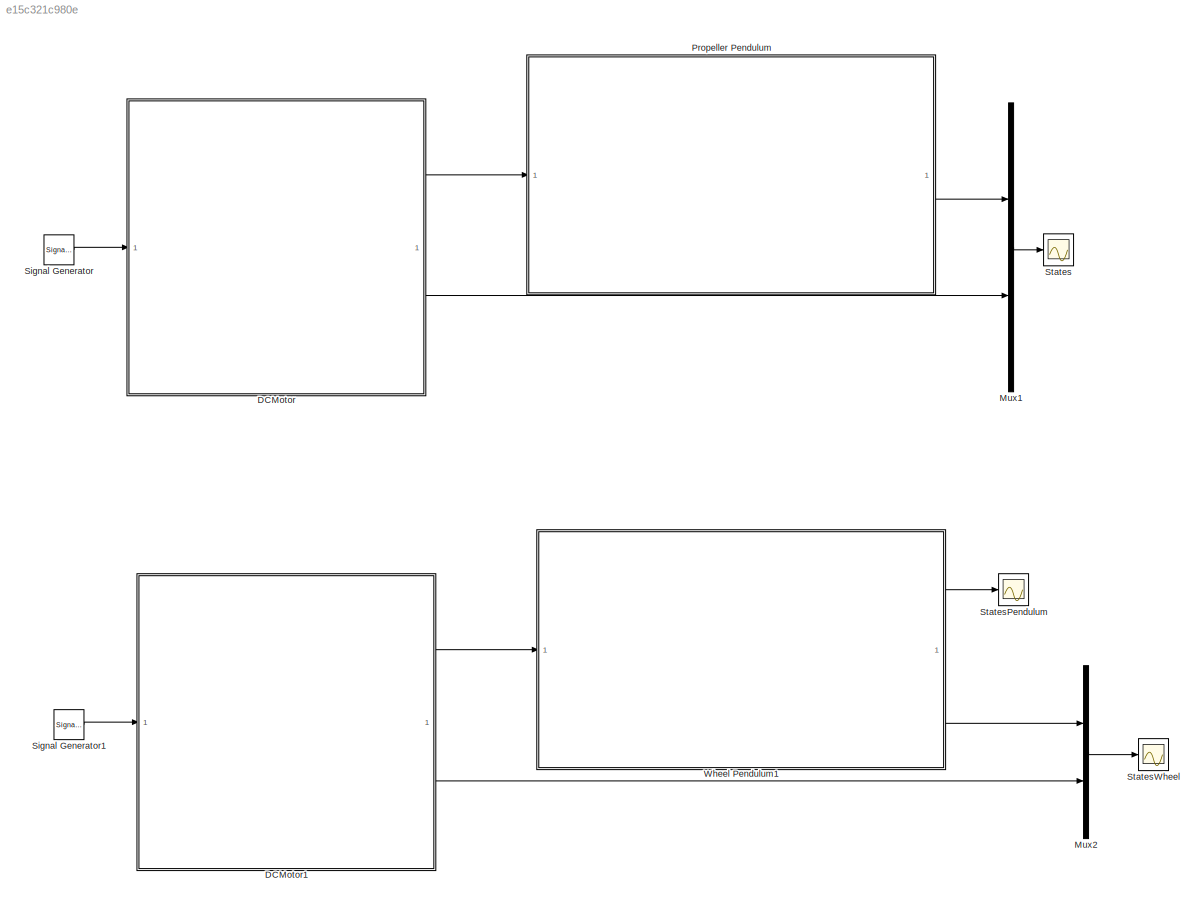
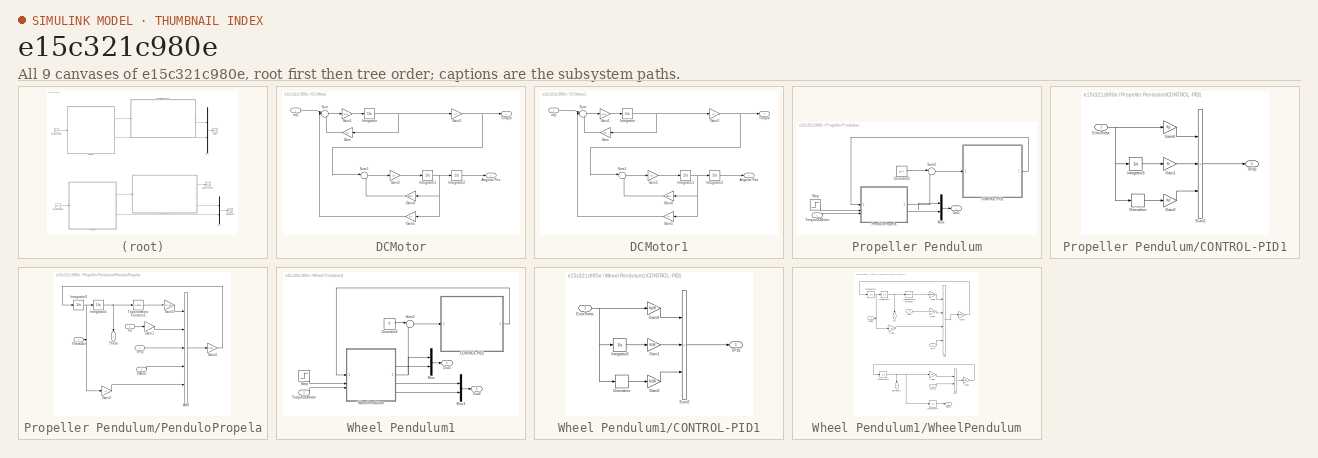
[diagram: thumbnail index - all 9 canvases of the model, root first then tree order]
MODEL mdl_e15c321c980e
KIND model
CONFIG AbsTol = auto
CONFIG EnableMultiTasking = off
CONFIG FixedStep = 0.001
CONFIG MaxStep = auto
CONFIG MinStep = auto
CONFIG RelTol = 1e-3
CONFIG SampleTimeConstraint = Unconstrained
CONFIG SolverName = FixedStepAuto
CONFIG StartTime = 0.0
CONFIG StopTime = 100
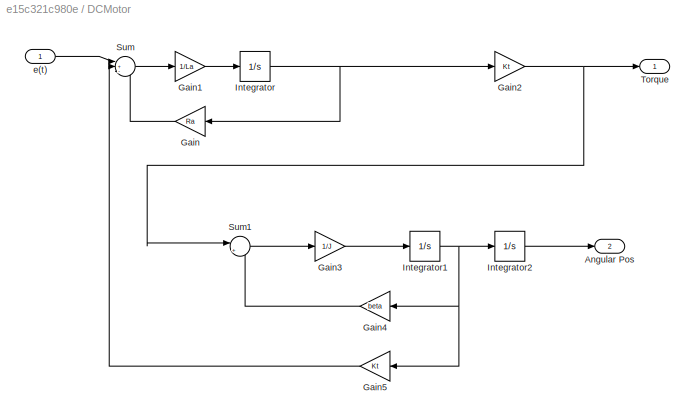
BLOCK [SubSystem] DCMotor
BLOCK [Outport] DCMotor/Angular Pos
  Port = 2
BLOCK [Gain] DCMotor/Gain
  Gain = Ra
  NameLocation = top
BLOCK [Gain] DCMotor/Gain1
  Gain = 1/La
BLOCK [Gain] DCMotor/Gain2
  Gain = Kt
BLOCK [Gain] DCMotor/Gain3
  Gain = 1/J
BLOCK [Gain] DCMotor/Gain4
  Gain = beta
  NameLocation = top
BLOCK [Gain] DCMotor/Gain5
  Gain = Kt
  NameLocation = top
BLOCK [Integrator] DCMotor/Integrator
BLOCK [Integrator] DCMotor/Integrator1
BLOCK [Integrator] DCMotor/Integrator2
BLOCK [Sum] DCMotor/Sum
  Inputs = |+--
BLOCK [Sum] DCMotor/Sum1
  Inputs = |+-
BLOCK [Outport] DCMotor/Torque
BLOCK [Inport] DCMotor/e(t)
BLOCK [SubSystem] DCMotor1
BLOCK [Outport] DCMotor1/Angular Pos
  Port = 2
BLOCK [Gain] DCMotor1/Gain
  Gain = Ra
  NameLocation = top
BLOCK [Gain] DCMotor1/Gain1
  Gain = 1/La
BLOCK [Gain] DCMotor1/Gain2
  Gain = Kt
BLOCK [Gain] DCMotor1/Gain3
  Gain = 1/J
BLOCK [Gain] DCMotor1/Gain4
  Gain = beta
  NameLocation = top
BLOCK [Gain] DCMotor1/Gain5
  Gain = Kt
  NameLocation = top
BLOCK [Integrator] DCMotor1/Integrator
BLOCK [Integrator] DCMotor1/Integrator1
BLOCK [Integrator] DCMotor1/Integrator2
BLOCK [Sum] DCMotor1/Sum
  Inputs = |+--
BLOCK [Sum] DCMotor1/Sum1
  Inputs = |+-
BLOCK [Outport] DCMotor1/Torque
BLOCK [Inport] DCMotor1/e(t)
BLOCK [Mux] Mux1
  DisplayOption = bar
  Inputs = 2
BLOCK [Mux] Mux2
  DisplayOption = bar
  Inputs = 2
BLOCK [SubSystem] Propeller Pendulum
BLOCK [SubSystem] Propeller Pendulum/CONTROL-PID1
BLOCK [Derivative] Propeller Pendulum/CONTROL-PID1/Derivative
  CoefficientInTFapproximation = 1/2.8915
BLOCK [Inport] Propeller Pendulum/CONTROL-PID1/ErrorTheta
BLOCK [Gain] Propeller Pendulum/CONTROL-PID1/Gain1
  Gain = Ki
BLOCK [Gain] Propeller Pendulum/CONTROL-PID1/Gain2
  Gain = Kd
BLOCK [Gain] Propeller Pendulum/CONTROL-PID1/Gain4
  Gain = Kp
BLOCK [Integrator] Propeller Pendulum/CONTROL-PID1/Integrator3
  InitialCondition = pi/2
BLOCK [Sum] Propeller Pendulum/CONTROL-PID1/Sum2
  IconShape = rectangular
  Inputs = +++
BLOCK [Outport] Propeller Pendulum/CONTROL-PID1/TPID
BLOCK [Constant] Propeller Pendulum/Constant3
  Value = pi/4
BLOCK [Mux] Propeller Pendulum/Mux
  DisplayOption = bar
  Inputs = 2
BLOCK [Outport] Propeller Pendulum/Out1
BLOCK [SubSystem] Propeller Pendulum/PenduloPropela
BLOCK [Sum] Propeller Pendulum/PenduloPropela/Add
  IconShape = rectangular
  Inputs = +++++
BLOCK [Inport] Propeller Pendulum/PenduloPropela/Fd
  Port = 2
BLOCK [Gain] Propeller Pendulum/PenduloPropela/Gain1
  Gain = -L
BLOCK [Gain] Propeller Pendulum/PenduloPropela/Gain2
  Gain = -b
BLOCK [Gain] Propeller Pendulum/PenduloPropela/Gain3
  Gain = ITinv
BLOCK [Gain] Propeller Pendulum/PenduloPropela/Gain5
  Gain = -MP*g*rc
BLOCK [Integrator] Propeller Pendulum/PenduloPropela/Integrator1
  InitialCondition = pi/2
BLOCK [Integrator] Propeller Pendulum/PenduloPropela/Integrator2
  InitialCondition = pi/2
BLOCK [Inport] Propeller Pendulum/PenduloPropela/TMotor
  Port = 3
BLOCK [Inport] Propeller Pendulum/PenduloPropela/TPID
BLOCK [Outport] Propeller Pendulum/PenduloPropela/Theta
  NameLocation = left
BLOCK [Outport] Propeller Pendulum/PenduloPropela/ThetaDot
  NameLocation = top
  Port = 2
BLOCK [Trigonometry] Propeller Pendulum/PenduloPropela/Trigonometric Function1
BLOCK [Step] Propeller Pendulum/Step
  After = Fd
  SampleTime = 0
BLOCK [Sum] Propeller Pendulum/Sum2
  Inputs = |+-
BLOCK [Inport] Propeller Pendulum/TorqueDCMotor
BLOCK [SignalGenerator] Signal Generator
  Units = rad/sec
BLOCK [SignalGenerator] Signal Generator1
  Units = rad/sec
BLOCK [Scope] States
  Floating = off
  NumInputPorts = 1
  ScopeSpecificationString = Simulink.scopes.TimeScopeBlockCfg('CurrentConfiguration', extmgr.ConfigurationSet(extmgr.Configuration('Core','General UI',true),extmgr.Configuration('Core','Source UI',true),extmgr.Configuration('Sources','WiredSimulink',true,'DataLoggingVariableName','ScopeData1'),extmgr.Configuration('Visuals','Time Domain',true,'SerializedDisplays',{struct('MinYLimReal','-2353.2694','MaxYLimReal','470.99658','...<+1530ch>
BLOCK [Scope] StatesPendulum
  Floating = off
  NumInputPorts = 1
  ScopeSpecificationString = Simulink.scopes.TimeScopeBlockCfg('CurrentConfiguration', extmgr.ConfigurationSet(extmgr.Configuration('Core','General UI',true),extmgr.Configuration('Core','Source UI',true),extmgr.Configuration('Sources','WiredSimulink',true,'DataLoggingVariableName','ScopeData2'),extmgr.Configuration('Visuals','Time Domain',true,'SerializedDisplays',{struct('MinYLimReal','-88.81158','MaxYLimReal','26.43078','YL...<+1506ch>
BLOCK [Scope] StatesWheel
  Floating = off
  NumInputPorts = 1
  ScopeSpecificationString = Simulink.scopes.TimeScopeBlockCfg('CurrentConfiguration', extmgr.ConfigurationSet(extmgr.Configuration('Core','General UI',true),extmgr.Configuration('Core','Source UI',true),extmgr.Configuration('Sources','WiredSimulink',true,'DataLoggingVariableName','ScopeData1'),extmgr.Configuration('Visuals','Time Domain',true,'SerializedDisplays',{struct('MinYLimReal','-2.35317','MaxYLimReal','7.53722','YLab...<+1489ch>
BLOCK [SubSystem] Wheel Pendulum1
BLOCK [SubSystem] Wheel Pendulum1/CONTROL-PID1
BLOCK [Derivative] Wheel Pendulum1/CONTROL-PID1/Derivative
  CoefficientInTFapproximation = 1/2.7561
BLOCK [Inport] Wheel Pendulum1/CONTROL-PID1/ErrorTheta
BLOCK [Gain] Wheel Pendulum1/CONTROL-PID1/Gain1
  Gain = KiW
BLOCK [Gain] Wheel Pendulum1/CONTROL-PID1/Gain2
  Gain = KdW
BLOCK [Gain] Wheel Pendulum1/CONTROL-PID1/Gain4
  Gain = KpW
BLOCK [Integrator] Wheel Pendulum1/CONTROL-PID1/Integrator3
  InitialCondition = pi/2
BLOCK [Sum] Wheel Pendulum1/CONTROL-PID1/Sum2
  IconShape = rectangular
  Inputs = +++
BLOCK [Outport] Wheel Pendulum1/CONTROL-PID1/TPID
BLOCK [Constant] Wheel Pendulum1/Constant3
  Value = 0
BLOCK [Mux] Wheel Pendulum1/Mux
  DisplayOption = bar
  Inputs = 2
BLOCK [Mux] Wheel Pendulum1/Mux1
  DisplayOption = bar
  Inputs = 2
BLOCK [Outport] Wheel Pendulum1/Out1
BLOCK [Outport] Wheel Pendulum1/Out2
  Port = 2
BLOCK [Step] Wheel Pendulum1/Step
  After = Fd
  SampleTime = 0
BLOCK [Sum] Wheel Pendulum1/Sum2
  Inputs = |+-
BLOCK [Inport] Wheel Pendulum1/TorqueDCMotor
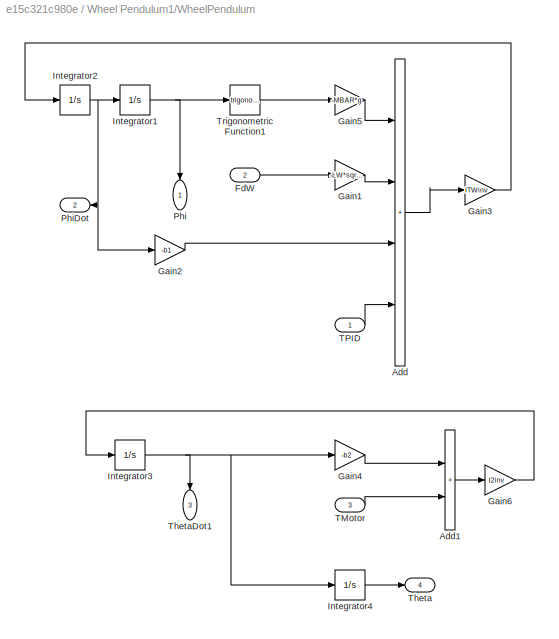
BLOCK [SubSystem] Wheel Pendulum1/WheelPendulum
BLOCK [Sum] Wheel Pendulum1/WheelPendulum/Add
  IconShape = rectangular
  Inputs = ++++
BLOCK [Sum] Wheel Pendulum1/WheelPendulum/Add1
  IconShape = rectangular
BLOCK [Inport] Wheel Pendulum1/WheelPendulum/FdW
  Port = 2
BLOCK [Gain] Wheel Pendulum1/WheelPendulum/Gain1
  Gain = -LW*sqrt(2)/2
BLOCK [Gain] Wheel Pendulum1/WheelPendulum/Gain2
  Gain = -b1
BLOCK [Gain] Wheel Pendulum1/WheelPendulum/Gain3
  Gain = ITWinv
BLOCK [Gain] Wheel Pendulum1/WheelPendulum/Gain4
  Gain = -b2
BLOCK [Gain] Wheel Pendulum1/WheelPendulum/Gain5
  Gain = -MBAR*g
BLOCK [Gain] Wheel Pendulum1/WheelPendulum/Gain6
  Gain = I2inv
BLOCK [Integrator] Wheel Pendulum1/WheelPendulum/Integrator1
  InitialCondition = pi/2
BLOCK [Integrator] Wheel Pendulum1/WheelPendulum/Integrator2
  InitialCondition = pi/2
BLOCK [Integrator] Wheel Pendulum1/WheelPendulum/Integrator3
  InitialCondition = pi/2
BLOCK [Integrator] Wheel Pendulum1/WheelPendulum/Integrator4
  InitialCondition = pi/2
BLOCK [Outport] Wheel Pendulum1/WheelPendulum/Phi
  NameLocation = left
BLOCK [Outport] Wheel Pendulum1/WheelPendulum/PhiDot
  NameLocation = top
  Port = 2
BLOCK [Inport] Wheel Pendulum1/WheelPendulum/TMotor
  Port = 3
BLOCK [Inport] Wheel Pendulum1/WheelPendulum/TPID
BLOCK [Outport] Wheel Pendulum1/WheelPendulum/Theta
  Port = 4
BLOCK [Outport] Wheel Pendulum1/WheelPendulum/ThetaDot1
  NameLocation = left
  Port = 3
BLOCK [Trigonometry] Wheel Pendulum1/WheelPendulum/Trigonometric Function1
LINE DCMotor/Gain1:1 -> DCMotor/Integrator:1
NET DCMotor/Gain2:1 -> DCMotor/Sum1:1, DCMotor/Torque:1
LINE DCMotor/Gain3:1 -> DCMotor/Integrator1:1
LINE DCMotor/Gain4:1 -> DCMotor/Sum1:2
LINE DCMotor/Gain5:1 -> DCMotor/Sum:2
LINE DCMotor/Gain:1 -> DCMotor/Sum:3
NET DCMotor/Integrator1:1 -> DCMotor/Gain4:1, DCMotor/Gain5:1, DCMotor/Integrator2:1
LINE DCMotor/Integrator2:1 -> DCMotor/Angular Pos:1
NET DCMotor/Integrator:1 -> DCMotor/Gain2:1, DCMotor/Gain:1
LINE DCMotor/Sum1:1 -> DCMotor/Gain3:1
LINE DCMotor/Sum:1 -> DCMotor/Gain1:1
LINE DCMotor/e(t):1 -> DCMotor/Sum:1
LINE DCMotor1/Gain1:1 -> DCMotor1/Integrator:1
NET DCMotor1/Gain2:1 -> DCMotor1/Sum1:1, DCMotor1/Torque:1
LINE DCMotor1/Gain3:1 -> DCMotor1/Integrator1:1
LINE DCMotor1/Gain4:1 -> DCMotor1/Sum1:2
LINE DCMotor1/Gain5:1 -> DCMotor1/Sum:2
LINE DCMotor1/Gain:1 -> DCMotor1/Sum:3
NET DCMotor1/Integrator1:1 -> DCMotor1/Gain4:1, DCMotor1/Gain5:1, DCMotor1/Integrator2:1
LINE DCMotor1/Integrator2:1 -> DCMotor1/Angular Pos:1
NET DCMotor1/Integrator:1 -> DCMotor1/Gain2:1, DCMotor1/Gain:1
LINE DCMotor1/Sum1:1 -> DCMotor1/Gain3:1
LINE DCMotor1/Sum:1 -> DCMotor1/Gain1:1
LINE DCMotor1/e(t):1 -> DCMotor1/Sum:1
LINE DCMotor1:1 -> Wheel Pendulum1:1
LINE DCMotor1:2 -> Mux2:2
LINE DCMotor:1 -> Propeller Pendulum:1
LINE DCMotor:2 -> Mux1:2
LINE Mux1:1 -> States:1
LINE Mux2:1 -> StatesWheel:1
LINE Propeller Pendulum/CONTROL-PID1/Derivative:1 -> Propeller Pendulum/CONTROL-PID1/Gain2:1
NET Propeller Pendulum/CONTROL-PID1/ErrorTheta:1 -> Propeller Pendulum/CONTROL-PID1/Derivative:1, Propeller Pendulum/CONTROL-PID1/Gain4:1, Propeller Pendulum/CONTROL-PID1/Integrator3:1
LINE Propeller Pendulum/CONTROL-PID1/Gain1:1 -> Propeller Pendulum/CONTROL-PID1/Sum2:2
LINE Propeller Pendulum/CONTROL-PID1/Gain2:1 -> Propeller Pendulum/CONTROL-PID1/Sum2:3
LINE Propeller Pendulum/CONTROL-PID1/Gain4:1 -> Propeller Pendulum/CONTROL-PID1/Sum2:1
LINE Propeller Pendulum/CONTROL-PID1/Integrator3:1 -> Propeller Pendulum/CONTROL-PID1/Gain1:1
LINE Propeller Pendulum/CONTROL-PID1/Sum2:1 -> Propeller Pendulum/CONTROL-PID1/TPID:1
LINE Propeller Pendulum/CONTROL-PID1:1 -> Propeller Pendulum/PenduloPropela:1
LINE Propeller Pendulum/Constant3:1 -> Propeller Pendulum/Sum2:1
LINE Propeller Pendulum/Mux:1 -> Propeller Pendulum/Out1:1
LINE Propeller Pendulum/PenduloPropela/Add:1 -> Propeller Pendulum/PenduloPropela/Gain3:1
LINE Propeller Pendulum/PenduloPropela/Fd:1 -> Propeller Pendulum/PenduloPropela/Gain1:1
LINE Propeller Pendulum/PenduloPropela/Gain1:1 -> Propeller Pendulum/PenduloPropela/Add:2
LINE Propeller Pendulum/PenduloPropela/Gain2:1 -> Propeller Pendulum/PenduloPropela/Add:5
LINE Propeller Pendulum/PenduloPropela/Gain3:1 -> Propeller Pendulum/PenduloPropela/Integrator2:1
LINE Propeller Pendulum/PenduloPropela/Gain5:1 -> Propeller Pendulum/PenduloPropela/Add:1
NET Propeller Pendulum/PenduloPropela/Integrator1:1 -> Propeller Pendulum/PenduloPropela/Theta:1, Propeller Pendulum/PenduloPropela/Trigonometric Function1:1
NET Propeller Pendulum/PenduloPropela/Integrator2:1 -> Propeller Pendulum/PenduloPropela/Gain2:1, Propeller Pendulum/PenduloPropela/Integrator1:1, Propeller Pendulum/PenduloPropela/ThetaDot:1
LINE Propeller Pendulum/PenduloPropela/TMotor:1 -> Propeller Pendulum/PenduloPropela/Add:4
LINE Propeller Pendulum/PenduloPropela/TPID:1 -> Propeller Pendulum/PenduloPropela/Add:3
LINE Propeller Pendulum/PenduloPropela/Trigonometric Function1:1 -> Propeller Pendulum/PenduloPropela/Gain5:1
NET Propeller Pendulum/PenduloPropela:1 -> Propeller Pendulum/Mux:1, Propeller Pendulum/Sum2:2
LINE Propeller Pendulum/PenduloPropela:2 -> Propeller Pendulum/Mux:2
LINE Propeller Pendulum/Step:1 -> Propeller Pendulum/PenduloPropela:2
LINE Propeller Pendulum/Sum2:1 -> Propeller Pendulum/CONTROL-PID1:1
LINE Propeller Pendulum/TorqueDCMotor:1 -> Propeller Pendulum/PenduloPropela:3
LINE Propeller Pendulum:1 -> Mux1:1
LINE Signal Generator1:1 -> DCMotor1:1
LINE Signal Generator:1 -> DCMotor:1
LINE Wheel Pendulum1/CONTROL-PID1/Derivative:1 -> Wheel Pendulum1/CONTROL-PID1/Gain2:1
NET Wheel Pendulum1/CONTROL-PID1/ErrorTheta:1 -> Wheel Pendulum1/CONTROL-PID1/Derivative:1, Wheel Pendulum1/CONTROL-PID1/Gain4:1, Wheel Pendulum1/CONTROL-PID1/Integrator3:1
LINE Wheel Pendulum1/CONTROL-PID1/Gain1:1 -> Wheel Pendulum1/CONTROL-PID1/Sum2:2
LINE Wheel Pendulum1/CONTROL-PID1/Gain2:1 -> Wheel Pendulum1/CONTROL-PID1/Sum2:3
LINE Wheel Pendulum1/CONTROL-PID1/Gain4:1 -> Wheel Pendulum1/CONTROL-PID1/Sum2:1
LINE Wheel Pendulum1/CONTROL-PID1/Integrator3:1 -> Wheel Pendulum1/CONTROL-PID1/Gain1:1
LINE Wheel Pendulum1/CONTROL-PID1/Sum2:1 -> Wheel Pendulum1/CONTROL-PID1/TPID:1
LINE Wheel Pendulum1/CONTROL-PID1:1 -> Wheel Pendulum1/WheelPendulum:1
LINE Wheel Pendulum1/Constant3:1 -> Wheel Pendulum1/Sum2:1
LINE Wheel Pendulum1/Mux1:1 -> Wheel Pendulum1/Out2:1
LINE Wheel Pendulum1/Mux:1 -> Wheel Pendulum1/Out1:1
LINE Wheel Pendulum1/Step:1 -> Wheel Pendulum1/WheelPendulum:2
LINE Wheel Pendulum1/Sum2:1 -> Wheel Pendulum1/CONTROL-PID1:1
LINE Wheel Pendulum1/TorqueDCMotor:1 -> Wheel Pendulum1/WheelPendulum:3
LINE Wheel Pendulum1/WheelPendulum/Add1:1 -> Wheel Pendulum1/WheelPendulum/Gain6:1
LINE Wheel Pendulum1/WheelPendulum/Add:1 -> Wheel Pendulum1/WheelPendulum/Gain3:1
LINE Wheel Pendulum1/WheelPendulum/FdW:1 -> Wheel Pendulum1/WheelPendulum/Gain1:1
LINE Wheel Pendulum1/WheelPendulum/Gain1:1 -> Wheel Pendulum1/WheelPendulum/Add:2
LINE Wheel Pendulum1/WheelPendulum/Gain2:1 -> Wheel Pendulum1/WheelPendulum/Add:3
LINE Wheel Pendulum1/WheelPendulum/Gain3:1 -> Wheel Pendulum1/WheelPendulum/Integrator2:1
LINE Wheel Pendulum1/WheelPendulum/Gain4:1 -> Wheel Pendulum1/WheelPendulum/Add1:1
LINE Wheel Pendulum1/WheelPendulum/Gain5:1 -> Wheel Pendulum1/WheelPendulum/Add:1
LINE Wheel Pendulum1/WheelPendulum/Gain6:1 -> Wheel Pendulum1/WheelPendulum/Integrator3:1
NET Wheel Pendulum1/WheelPendulum/Integrator1:1 -> Wheel Pendulum1/WheelPendulum/Phi:1, Wheel Pendulum1/WheelPendulum/Trigonometric Function1:1
NET Wheel Pendulum1/WheelPendulum/Integrator2:1 -> Wheel Pendulum1/WheelPendulum/Gain2:1, Wheel Pendulum1/WheelPendulum/Integrator1:1, Wheel Pendulum1/WheelPendulum/PhiDot:1
NET Wheel Pendulum1/WheelPendulum/Integrator3:1 -> Wheel Pendulum1/WheelPendulum/Gain4:1, Wheel Pendulum1/WheelPendulum/Integrator4:1, Wheel Pendulum1/WheelPendulum/ThetaDot1:1
LINE Wheel Pendulum1/WheelPendulum/Integrator4:1 -> Wheel Pendulum1/WheelPendulum/Theta:1
LINE Wheel Pendulum1/WheelPendulum/TMotor:1 -> Wheel Pendulum1/WheelPendulum/Add1:2
LINE Wheel Pendulum1/WheelPendulum/TPID:1 -> Wheel Pendulum1/WheelPendulum/Add:4
LINE Wheel Pendulum1/WheelPendulum/Trigonometric Function1:1 -> Wheel Pendulum1/WheelPendulum/Gain5:1
NET Wheel Pendulum1/WheelPendulum:1 -> Wheel Pendulum1/Mux:1, Wheel Pendulum1/Sum2:2
LINE Wheel Pendulum1/WheelPendulum:2 -> Wheel Pendulum1/Mux:2
LINE Wheel Pendulum1/WheelPendulum:3 -> Wheel Pendulum1/Mux1:1
LINE Wheel Pendulum1/WheelPendulum:4 -> Wheel Pendulum1/Mux1:2
LINE Wheel Pendulum1:1 -> StatesPendulum:1
LINE Wheel Pendulum1:2 -> Mux2:1
note: NET lines group one-source signal fan-out (src -> all destinations, sorted); 1:1 wires keep LINE
